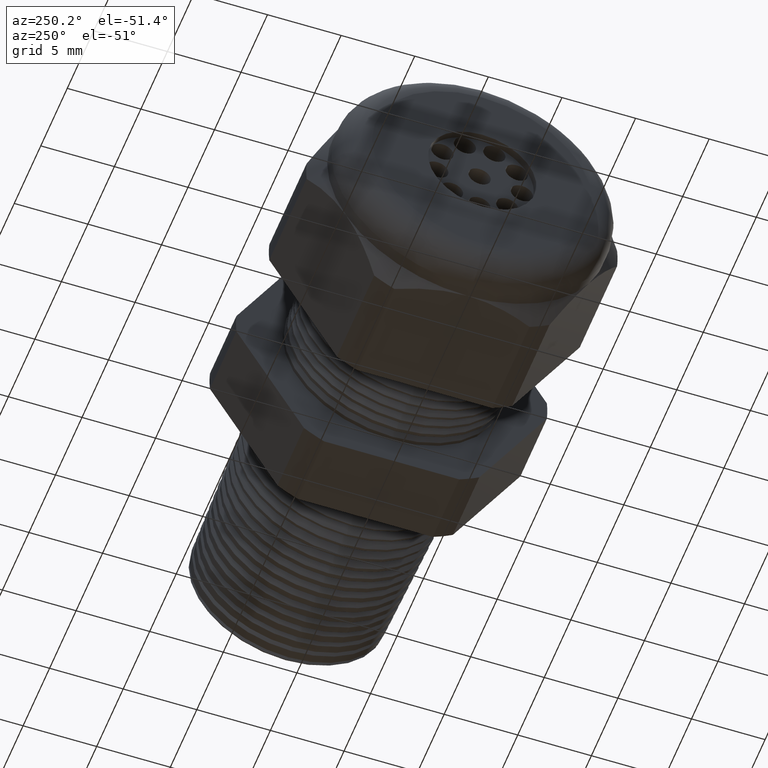
[diagram: clean part render]
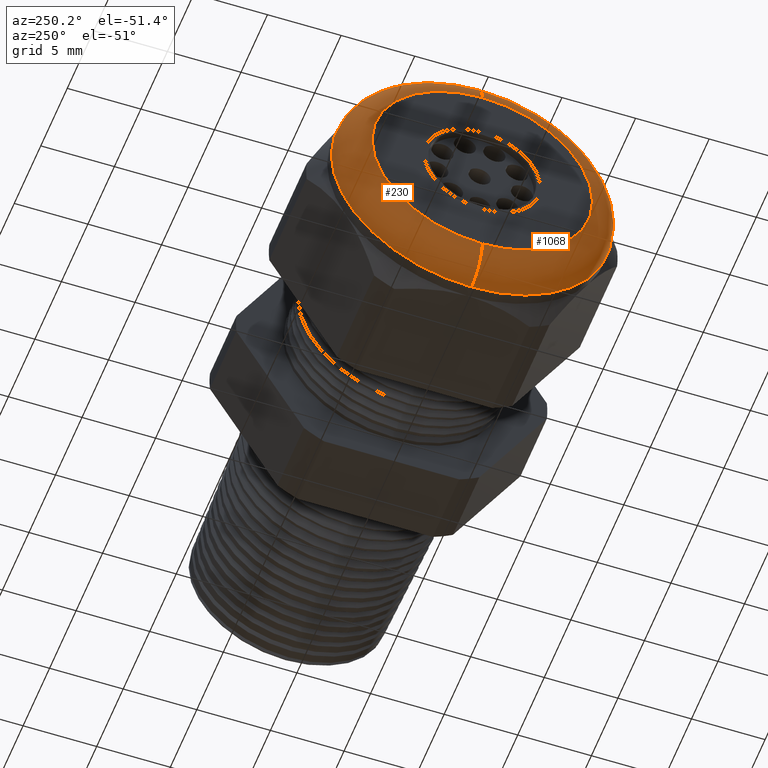
[diagram: same view with one multi-face feature highlighted, each face labeled with its STEP entity id]
A machine part, auxiliary view. The highlighted faces form ONE feature: a constant-radius fillet chain: 2 tangent blend faces with common blend radius 2.032 mm. The faces share edges in the B-rep.
Their STEP definitions:
[1] entity #230 (Torus):
#230 = ADVANCED_FACE ( 'NONE', ( #2544 ), #2543, .T. ) ;
#231 = EDGE_LOOP ( 'NONE', ( #282, #286, #289, #292 ) ) ;
#282 = ORIENTED_EDGE ( 'NONE', *, *, #283, .F. ) ;
#283 = EDGE_CURVE ( 'NONE', #284, #285, #2627, .T. ) ;
#284 = VERTEX_POINT ( 'NONE', #2622 ) ;
#285 = VERTEX_POINT ( 'NONE', #2621 ) ;
#286 = ORIENTED_EDGE ( 'NONE', *, *, #287, .T. ) ;
#287 = EDGE_CURVE ( 'NONE', #284, #288, #2620, .T. ) ;
#288 = VERTEX_POINT ( 'NONE', #2615 ) ;
#289 = ORIENTED_EDGE ( 'NONE', *, *, #290, .F. ) ;
#290 = EDGE_CURVE ( 'NONE', #291, #288, #2614, .T. ) ;
#291 = VERTEX_POINT ( 'NONE', #2609 ) ;
#292 = ORIENTED_EDGE ( 'NONE', *, *, #293, .F. ) ;
#293 = EDGE_CURVE ( 'NONE', #285, #291, #2608, .T. ) ;
#2539 = DIRECTION ( 'NONE',  ( 0.0000000000000000000, 0.0000000000000000000, 1.000000000000000000 ) ) ;
#2540 = DIRECTION ( 'NONE',  ( -1.000000000000000000, 0.0000000000000000000, 0.0000000000000000000 ) ) ;
#2541 = CARTESIAN_POINT ( 'NONE',  ( -1.100000000000000100, 0.0000000000000000000, 0.0000000000000000000 ) ) ;
#2542 = AXIS2_PLACEMENT_3D ( 'NONE', #2541, #2540, #2539 ) ;
#2543 = TOROIDAL_SURFACE ( 'NONE', #2542, 0.2950000000000001000, 0.08000000000000000200 ) ;
#2544 = FACE_OUTER_BOUND ( 'NONE', #231, .T. ) ;
#2608 = CIRCLE ( 'NONE', #2669, 0.08000000000000000200 ) ;
#2609 = CARTESIAN_POINT ( 'NONE',  ( -1.179999999999999900, 0.0000000000000000000, 0.2950000000000001000 ) ) ;
#2610 = DIRECTION ( 'NONE',  ( 0.0000000000000000000, 0.0000000000000000000, 1.000000000000000000 ) ) ;
#2611 = DIRECTION ( 'NONE',  ( -1.000000000000000000, 0.0000000000000000000, 0.0000000000000000000 ) ) ;
#2612 = CARTESIAN_POINT ( 'NONE',  ( -1.179999999999999900, 0.0000000000000000000, 0.0000000000000000000 ) ) ;
#2613 = AXIS2_PLACEMENT_3D ( 'NONE', #2612, #2611, #2610 ) ;
#2614 = CIRCLE ( 'NONE', #2613, 0.2950000000000001000 ) ;
#2615 = CARTESIAN_POINT ( 'NONE',  ( -1.179999999999999900, 4.102566777143634000E-017, -0.2950000000000001000 ) ) ;
#2616 = DIRECTION ( 'NONE',  ( 0.0000000000000000000, -1.224646799147353500E-016, 1.000000000000000000 ) ) ;
#2617 = DIRECTION ( 'NONE',  ( 0.0000000000000000000, 1.000000000000000000, 1.224646799147353200E-016 ) ) ;
#2618 = CARTESIAN_POINT ( 'NONE',  ( -1.100000000000000100, 3.612708057484693200E-017, -0.2950000000000001000 ) ) ;
#2619 = AXIS2_PLACEMENT_3D ( 'NONE', #2618, #2617, #2616 ) ;
#2620 = CIRCLE ( 'NONE', #2619, 0.08000000000000000200 ) ;
#2621 = CARTESIAN_POINT ( 'NONE',  ( -1.100000000000000100, 4.592425496802576100E-017, 0.3750000000000001100 ) ) ;
#2622 = CARTESIAN_POINT ( 'NONE',  ( -1.100000000000000100, 0.0000000000000000000, -0.3750000000000001100 ) ) ;
#2623 = DIRECTION ( 'NONE',  ( 0.0000000000000000000, 0.0000000000000000000, 1.000000000000000000 ) ) ;
#2624 = DIRECTION ( 'NONE',  ( 1.000000000000000000, 0.0000000000000000000, 0.0000000000000000000 ) ) ;
#2625 = CARTESIAN_POINT ( 'NONE',  ( -1.100000000000000100, 0.0000000000000000000, 0.0000000000000000000 ) ) ;
#2626 = AXIS2_PLACEMENT_3D ( 'NONE', #2625, #2624, #2623 ) ;
#2627 = CIRCLE ( 'NONE', #2626, 0.3750000000000001100 ) ;
#2666 = DIRECTION ( 'NONE',  ( 0.0000000000000000000, 0.0000000000000000000, -1.000000000000000000 ) ) ;
#2667 = DIRECTION ( 'NONE',  ( 0.0000000000000000000, -1.000000000000000000, 0.0000000000000000000 ) ) ;
#2668 = CARTESIAN_POINT ( 'NONE',  ( -1.100000000000000100, 0.0000000000000000000, 0.2950000000000001000 ) ) ;
#2669 = AXIS2_PLACEMENT_3D ( 'NONE', #2668, #2667, #2666 ) ;
[2] entity #1068 (Torus):
#284 = VERTEX_POINT ( 'NONE', #2622 ) ;
#285 = VERTEX_POINT ( 'NONE', #2621 ) ;
#287 = EDGE_CURVE ( 'NONE', #284, #288, #2620, .T. ) ;
#288 = VERTEX_POINT ( 'NONE', #2615 ) ;
#291 = VERTEX_POINT ( 'NONE', #2609 ) ;
#293 = EDGE_CURVE ( 'NONE', #285, #291, #2608, .T. ) ;
#860 = EDGE_CURVE ( 'NONE', #288, #291, #3783, .T. ) ;
#919 = EDGE_CURVE ( 'NONE', #285, #284, #3857, .T. ) ;
#1068 = ADVANCED_FACE ( 'NONE', ( #4089 ), #4088, .T. ) ;
#1069 = EDGE_LOOP ( 'NONE', ( #1070, #1071, #1072, #1073 ) ) ;
#1070 = ORIENTED_EDGE ( 'NONE', *, *, #287, .F. ) ;
#1071 = ORIENTED_EDGE ( 'NONE', *, *, #919, .F. ) ;
#1072 = ORIENTED_EDGE ( 'NONE', *, *, #293, .T. ) ;
#1073 = ORIENTED_EDGE ( 'NONE', *, *, #860, .F. ) ;
#2608 = CIRCLE ( 'NONE', #2669, 0.08000000000000000200 ) ;
#2609 = CARTESIAN_POINT ( 'NONE',  ( -1.179999999999999900, 0.0000000000000000000, 0.2950000000000001000 ) ) ;
#2615 = CARTESIAN_POINT ( 'NONE',  ( -1.179999999999999900, 4.102566777143634000E-017, -0.2950000000000001000 ) ) ;
#2616 = DIRECTION ( 'NONE',  ( 0.0000000000000000000, -1.224646799147353500E-016, 1.000000000000000000 ) ) ;
#2617 = DIRECTION ( 'NONE',  ( 0.0000000000000000000, 1.000000000000000000, 1.224646799147353200E-016 ) ) ;
#2618 = CARTESIAN_POINT ( 'NONE',  ( -1.100000000000000100, 3.612708057484693200E-017, -0.2950000000000001000 ) ) ;
#2619 = AXIS2_PLACEMENT_3D ( 'NONE', #2618, #2617, #2616 ) ;
#2620 = CIRCLE ( 'NONE', #2619, 0.08000000000000000200 ) ;
#2621 = CARTESIAN_POINT ( 'NONE',  ( -1.100000000000000100, 4.592425496802576100E-017, 0.3750000000000001100 ) ) ;
#2622 = CARTESIAN_POINT ( 'NONE',  ( -1.100000000000000100, 0.0000000000000000000, -0.3750000000000001100 ) ) ;
#2666 = DIRECTION ( 'NONE',  ( 0.0000000000000000000, 0.0000000000000000000, -1.000000000000000000 ) ) ;
#2667 = DIRECTION ( 'NONE',  ( 0.0000000000000000000, -1.000000000000000000, 0.0000000000000000000 ) ) ;
#2668 = CARTESIAN_POINT ( 'NONE',  ( -1.100000000000000100, 0.0000000000000000000, 0.2950000000000001000 ) ) ;
#2669 = AXIS2_PLACEMENT_3D ( 'NONE', #2668, #2667, #2666 ) ;
#3779 = DIRECTION ( 'NONE',  ( 0.0000000000000000000, 0.0000000000000000000, 1.000000000000000000 ) ) ;
#3780 = DIRECTION ( 'NONE',  ( -1.000000000000000000, 0.0000000000000000000, 0.0000000000000000000 ) ) ;
#3781 = CARTESIAN_POINT ( 'NONE',  ( -1.179999999999999900, 0.0000000000000000000, 0.0000000000000000000 ) ) ;
#3782 = AXIS2_PLACEMENT_3D ( 'NONE', #3781, #3780, #3779 ) ;
#3783 = CIRCLE ( 'NONE', #3782, 0.2950000000000001000 ) ;
#3854 = DIRECTION ( 'NONE',  ( 0.0000000000000000000, 0.0000000000000000000, 1.000000000000000000 ) ) ;
#3855 = DIRECTION ( 'NONE',  ( 1.000000000000000000, 0.0000000000000000000, 0.0000000000000000000 ) ) ;
#3856 = AXIS2_PLACEMENT_3D ( 'NONE', #3861, #3855, #3854 ) ;
#3857 = CIRCLE ( 'NONE', #3856, 0.3750000000000001100 ) ;
#3861 = CARTESIAN_POINT ( 'NONE',  ( -1.100000000000000100, 0.0000000000000000000, 0.0000000000000000000 ) ) ;
#4085 = DIRECTION ( 'NONE',  ( 0.0000000000000000000, 0.0000000000000000000, 1.000000000000000000 ) ) ;
#4086 = DIRECTION ( 'NONE',  ( -1.000000000000000000, 0.0000000000000000000, 0.0000000000000000000 ) ) ;
#4087 = AXIS2_PLACEMENT_3D ( 'NONE', #4093, #4086, #4085 ) ;
#4088 = TOROIDAL_SURFACE ( 'NONE', #4087, 0.2950000000000001000, 0.08000000000000000200 ) ;
#4089 = FACE_OUTER_BOUND ( 'NONE', #1069, .T. ) ;
#4093 = CARTESIAN_POINT ( 'NONE',  ( -1.100000000000000100, 0.0000000000000000000, 0.0000000000000000000 ) ) ;